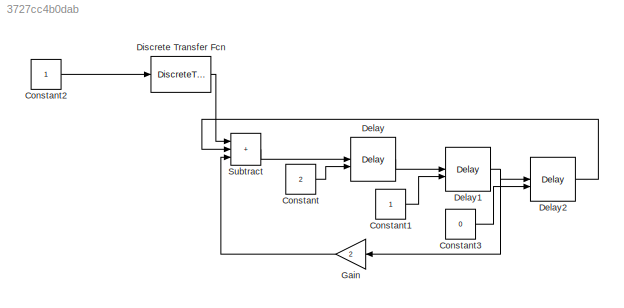
MODEL slx_3727cc4b0dab
KIND model
CONFIG AbsTol = auto
CONFIG EnableMultiTasking = off
CONFIG FixedStep = auto
CONFIG MaxStep = auto
CONFIG MinStep = auto
CONFIG RelTol = 1e-3
CONFIG SampleTimeConstraint = Unconstrained
CONFIG SolverName = VariableStepAuto
CONFIG StartTime = 0.0
CONFIG StopTime = 60
BLOCK [Constant] Constant
  Value = 2
BLOCK [Constant] Constant1
BLOCK [Constant] Constant2
BLOCK [Constant] Constant3
  Value = 0
BLOCK [Delay] Delay
  DelayLength = 1
  DelayLengthSource = Input port
  InitialCondition = 0
  InputPortMap = u0,p1
BLOCK [Delay] Delay1
  DelayLength = 1
  DelayLengthSource = Input port
  InitialCondition = 0
  InputPortMap = u0,p1
BLOCK [Delay] Delay2
  DelayLength = 1
  DelayLengthSource = Input port
  InitialCondition = 0
  InputPortMap = u0,p1
BLOCK [DiscreteTransferFcn] Discrete Transfer Fcn
  Denominator = [1 -3]
  InputPortMap = u0
  Numerator = [1 0]
BLOCK [Gain] Gain
  Gain = 2
  NameLocation = top
BLOCK [Sum] Subtract
  IconShape = rectangular
  Inputs = +++
LINE Constant1:1 -> Delay1:2
LINE Constant2:1 -> Discrete Transfer Fcn:1
LINE Constant3:1 -> Delay2:2
LINE Constant:1 -> Delay:2
NET Delay1:1 -> Delay2:1, Gain:1
LINE Delay2:1 -> Subtract:2
LINE Delay:1 -> Delay1:1
LINE Discrete Transfer Fcn:1 -> Subtract:1
LINE Gain:1 -> Subtract:3
LINE Subtract:1 -> Delay:1
note: NET lines group one-source signal fan-out (src -> all destinations, sorted); 1:1 wires keep LINE
